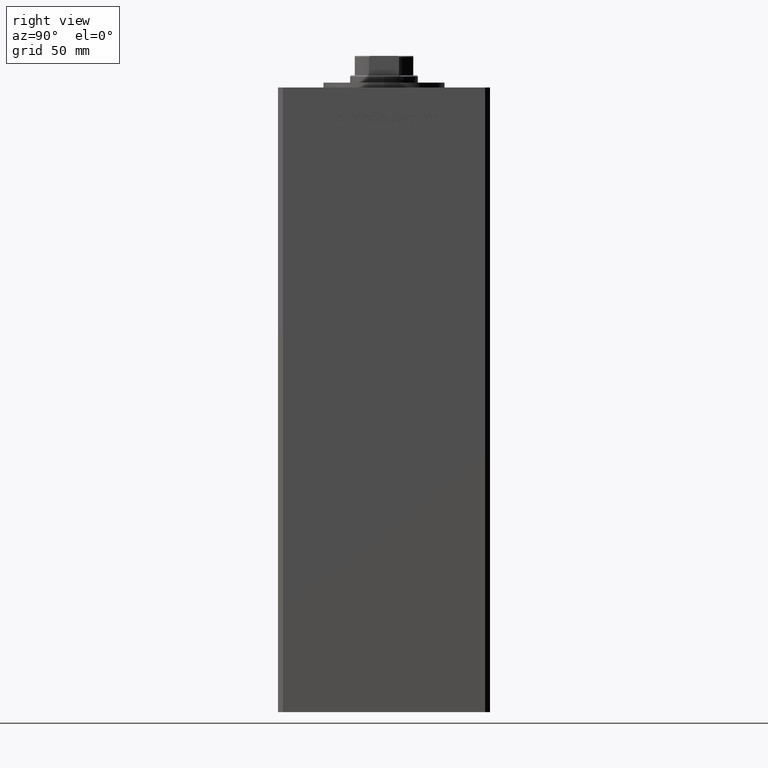
[diagram: clean part render]
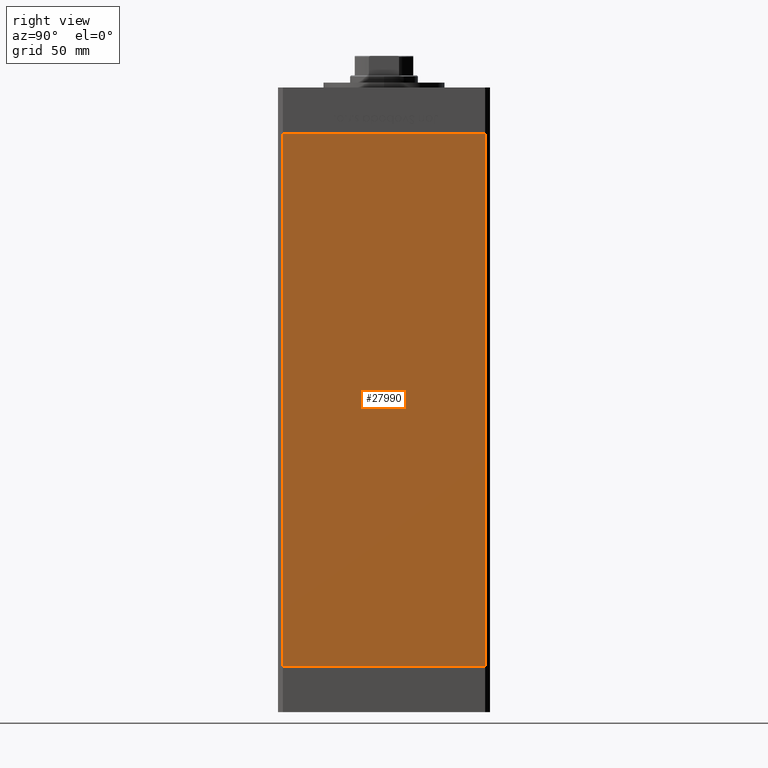
[diagram: same view with one face highlighted and labeled with its STEP entity id]
A machine part, right view. The second image highlights one B-rep face of the part: STEP entity #27990.
In plain terms, the highlighted planar face has unit normal (1, -0, 0).
Its self-contained STEP definition (entity closure, byte-faithful):
#182 = FACE_OUTER_BOUND ( 'NONE', #19424, .T. ) ;
#1727 = CARTESIAN_POINT ( 'NONE',  ( 49.99999999999998579, -41.49999999999999289, 218.5000000000000000 ) ) ;
#2739 = VERTEX_POINT ( 'NONE', #33524 ) ;
#3101 = CARTESIAN_POINT ( 'NONE',  ( 50.00000000000001421, 41.49999999999999289, 0.000000000000000000 ) ) ;
#5071 = VERTEX_POINT ( 'NONE', #6786 ) ;
#6543 = DIRECTION ( 'NONE',  ( -3.344045254895050973E-16, -1.000000000000000000, 0.000000000000000000 ) ) ;
#6786 = CARTESIAN_POINT ( 'NONE',  ( 49.99999999999998579, -41.49999999999999289, 218.5000000000000000 ) ) ;
#7278 = EDGE_CURVE ( 'NONE', #2739, #38251, #30290, .T. ) ;
#10562 = EDGE_CURVE ( 'NONE', #15070, #2739, #21434, .T. ) ;
#11819 = DIRECTION ( 'NONE',  ( 1.000000000000000000, -3.344045254895050480E-16, 0.000000000000000000 ) ) ;
#13398 = CARTESIAN_POINT ( 'NONE',  ( 50.00000000000001421, 41.49999999999999289, 218.5000000000000000 ) ) ;
#15070 = VERTEX_POINT ( 'NONE', #13398 ) ;
#15460 = CARTESIAN_POINT ( 'NONE',  ( 49.99999999999998579, -41.49999999999999289, 0.000000000000000000 ) ) ;
#17343 = LINE ( 'NONE', #37147, #47365 ) ;
#17821 = DIRECTION ( 'NONE',  ( -0.000000000000000000, -0.000000000000000000, -1.000000000000000000 ) ) ;
#19264 = VECTOR ( 'NONE', #49122, 1000.000000000000000 ) ;
#19424 = EDGE_LOOP ( 'NONE', ( #29982, #42720, #22412, #45586 ) ) ;
#20822 = EDGE_CURVE ( 'NONE', #15070, #5071, #17343, .T. ) ;
#21434 = LINE ( 'NONE', #41476, #19264 ) ;
#21782 = LINE ( 'NONE', #1727, #48401 ) ;
#22412 = ORIENTED_EDGE ( 'NONE', *, *, #20822, .T. ) ;
#25539 = DIRECTION ( 'NONE',  ( -3.344045254895050973E-16, -1.000000000000000000, 0.000000000000000000 ) ) ;
#27990 = ADVANCED_FACE ( 'NONE', ( #182 ), #32113, .T. ) ;
#29982 = ORIENTED_EDGE ( 'NONE', *, *, #7278, .F. ) ;
#30290 = LINE ( 'NONE', #3101, #42888 ) ;
#32113 = PLANE ( 'NONE',  #43748 ) ;
#33524 = CARTESIAN_POINT ( 'NONE',  ( 50.00000000000001421, 41.49999999999999289, 0.000000000000000000 ) ) ;
#37147 = CARTESIAN_POINT ( 'NONE',  ( 50.00000000000001421, 41.49999999999999289, 218.5000000000000000 ) ) ;
#38251 = VERTEX_POINT ( 'NONE', #15460 ) ;
#39770 = CARTESIAN_POINT ( 'NONE',  ( 50.00000000000001421, 41.49999999999999289, 218.5000000000000000 ) ) ;
#41476 = CARTESIAN_POINT ( 'NONE',  ( 50.00000000000001421, 41.49999999999999289, 218.5000000000000000 ) ) ;
#42720 = ORIENTED_EDGE ( 'NONE', *, *, #10562, .F. ) ;
#42888 = VECTOR ( 'NONE', #6543, 1000.000000000000000 ) ;
#43748 = AXIS2_PLACEMENT_3D ( 'NONE', #39770, #11819, #48457 ) ;
#45586 = ORIENTED_EDGE ( 'NONE', *, *, #48636, .T. ) ;
#47365 = VECTOR ( 'NONE', #25539, 1000.000000000000000 ) ;
#48401 = VECTOR ( 'NONE', #17821, 1000.000000000000000 ) ;
#48457 = DIRECTION ( 'NONE',  ( 3.344045254895050480E-16, 1.000000000000000000, 0.000000000000000000 ) ) ;
#48636 = EDGE_CURVE ( 'NONE', #5071, #38251, #21782, .T. ) ;
#49122 = DIRECTION ( 'NONE',  ( -0.000000000000000000, -0.000000000000000000, -1.000000000000000000 ) ) ;